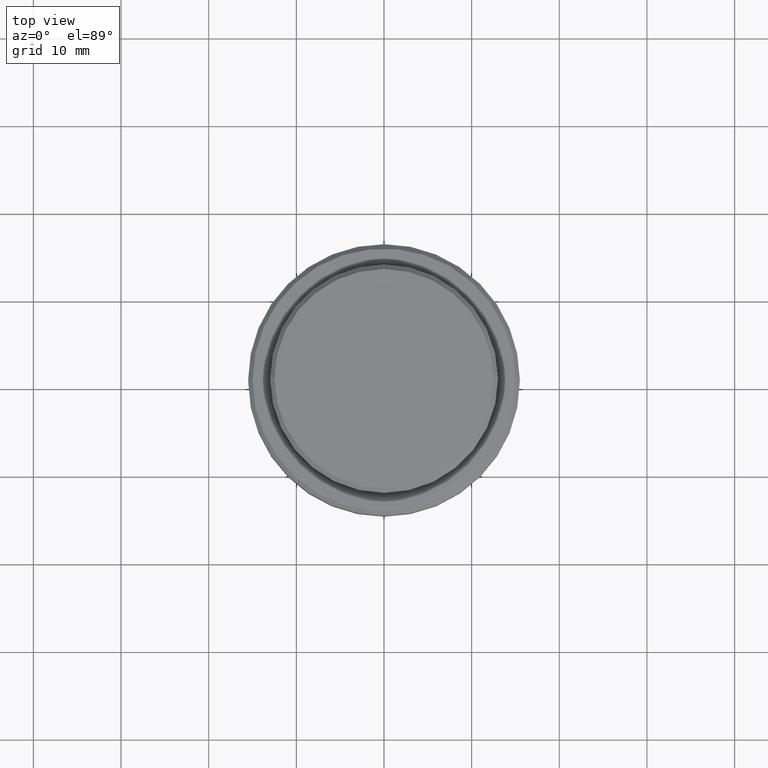
[diagram: clean part render]
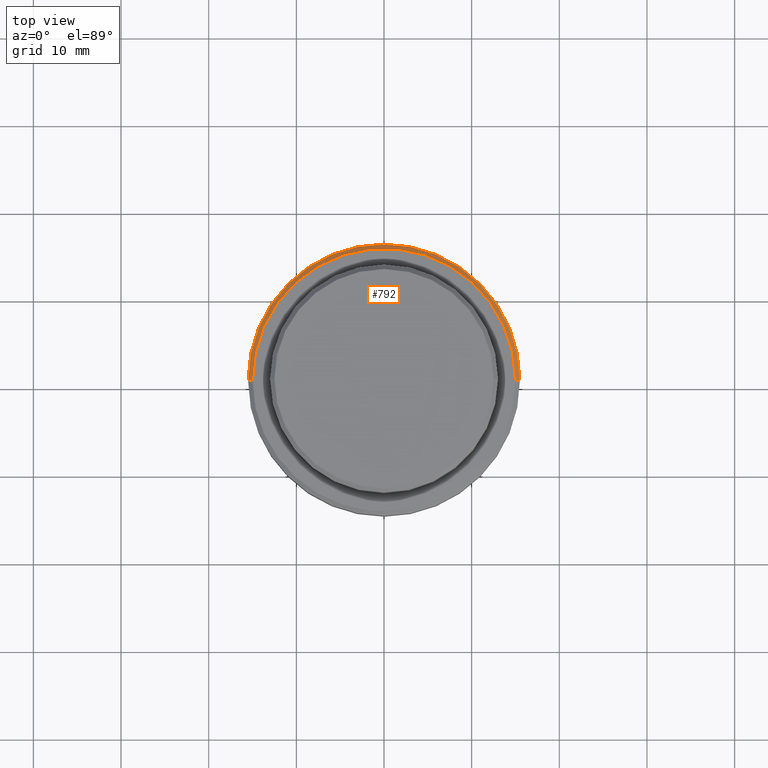
[diagram: same view with one face highlighted and labeled with its STEP entity id]
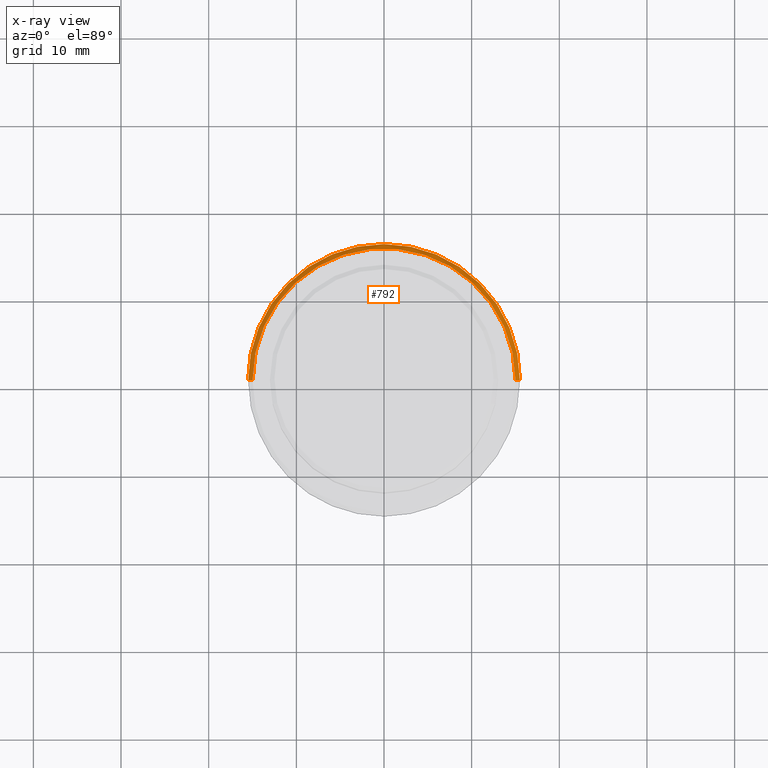
[diagram: x-ray of the same camera — body ghosted, the highlighted face saturated]
A machine part, top view. The second image highlights one B-rep face of the part: STEP entity #792.
The next image is the same camera in x-ray: the body ghosted, the highlighted face saturated — about 0% of this face is hidden behind the body in this view.
In plain terms, the highlighted conical surface has half-angle 45 deg.
Its self-contained STEP definition (entity closure, byte-faithful):
#3 = DIRECTION ( 'NONE',  ( 0.000000000000000000, 0.000000000000000000, -1.000000000000000000 ) ) ;
#56 = DIRECTION ( 'NONE',  ( -0.000000000000000000, -0.000000000000000000, 1.000000000000000000 ) ) ;
#63 = AXIS2_PLACEMENT_3D ( 'NONE', #1047, #56, #487 ) ;
#125 = ORIENTED_EDGE ( 'NONE', *, *, #419, .T. ) ;
#149 = CARTESIAN_POINT ( 'NONE',  ( 0.000000000000000000, 0.000000000000000000, -9.000000000000000000 ) ) ;
#193 = VECTOR ( 'NONE', #1408, 999.9999999999998863 ) ;
#196 = CARTESIAN_POINT ( 'NONE',  ( -15.00000000000001421, 0.000000000000000000, -9.000000000000000000 ) ) ;
#205 = FACE_OUTER_BOUND ( 'NONE', #1336, .T. ) ;
#222 = CARTESIAN_POINT ( 'NONE',  ( 15.00000000000001421, 1.836970198721031561E-15, -9.000000000000000000 ) ) ;
#232 = LINE ( 'NONE', #1090, #360 ) ;
#296 = CIRCLE ( 'NONE', #1129, 15.50000000000000000 ) ;
#352 = VERTEX_POINT ( 'NONE', #619 ) ;
#360 = VECTOR ( 'NONE', #672, 999.9999999999998863 ) ;
#399 = CARTESIAN_POINT ( 'NONE',  ( 15.00000000000001421, 1.867586368699714559E-15, -9.000000000000000000 ) ) ;
#419 = EDGE_CURVE ( 'NONE', #1024, #1081, #431, .T. ) ;
#431 = LINE ( 'NONE', #222, #193 ) ;
#444 = DIRECTION ( 'NONE',  ( 1.000000000000000000, 0.000000000000000000, 0.000000000000000000 ) ) ;
#449 = ORIENTED_EDGE ( 'NONE', *, *, #752, .F. ) ;
#487 = DIRECTION ( 'NONE',  ( 1.000000000000000000, 0.000000000000000000, 0.000000000000000000 ) ) ;
#565 = AXIS2_PLACEMENT_3D ( 'NONE', #149, #795, #1232 ) ;
#619 = CARTESIAN_POINT ( 'NONE',  ( -15.50000000000000000, 1.898202538678397557E-15, -9.499999999999991118 ) ) ;
#672 = DIRECTION ( 'NONE',  ( -0.7071067811865439090, 0.000000000000000000, -0.7071067811865512365 ) ) ;
#752 = EDGE_CURVE ( 'NONE', #352, #1081, #296, .T. ) ;
#792 = ADVANCED_FACE ( 'NONE', ( #205 ), #1178, .T. ) ;
#795 = DIRECTION ( 'NONE',  ( 0.000000000000000000, 0.000000000000000000, -1.000000000000000000 ) ) ;
#863 = ORIENTED_EDGE ( 'NONE', *, *, #1331, .F. ) ;
#886 = ORIENTED_EDGE ( 'NONE', *, *, #965, .F. ) ;
#965 = EDGE_CURVE ( 'NONE', #1024, #1203, #1069, .T. ) ;
#988 = CARTESIAN_POINT ( 'NONE',  ( 0.000000000000000000, 0.000000000000000000, -9.499999999999991118 ) ) ;
#1024 = VERTEX_POINT ( 'NONE', #399 ) ;
#1047 = CARTESIAN_POINT ( 'NONE',  ( 0.000000000000000000, 0.000000000000000000, -9.000000000000000000 ) ) ;
#1069 = CIRCLE ( 'NONE', #63, 15.00000000000001421 ) ;
#1081 = VERTEX_POINT ( 'NONE', #1139 ) ;
#1090 = CARTESIAN_POINT ( 'NONE',  ( -15.00000000000001421, 0.000000000000000000, -9.000000000000000000 ) ) ;
#1129 = AXIS2_PLACEMENT_3D ( 'NONE', #988, #3, #444 ) ;
#1139 = CARTESIAN_POINT ( 'NONE',  ( 15.50000000000000000, 0.000000000000000000, -9.499999999999991118 ) ) ;
#1178 = CONICAL_SURFACE ( 'NONE', #565, 15.00000000000001421, 0.7853981633974430610 ) ;
#1203 = VERTEX_POINT ( 'NONE', #196 ) ;
#1232 = DIRECTION ( 'NONE',  ( -1.000000000000000000, 0.000000000000000000, 0.000000000000000000 ) ) ;
#1331 = EDGE_CURVE ( 'NONE', #1203, #352, #232, .T. ) ;
#1336 = EDGE_LOOP ( 'NONE', ( #886, #125, #449, #863 ) ) ;
#1408 = DIRECTION ( 'NONE',  ( 0.7071067811865439090, 8.659560562354887252E-17, -0.7071067811865512365 ) ) ;